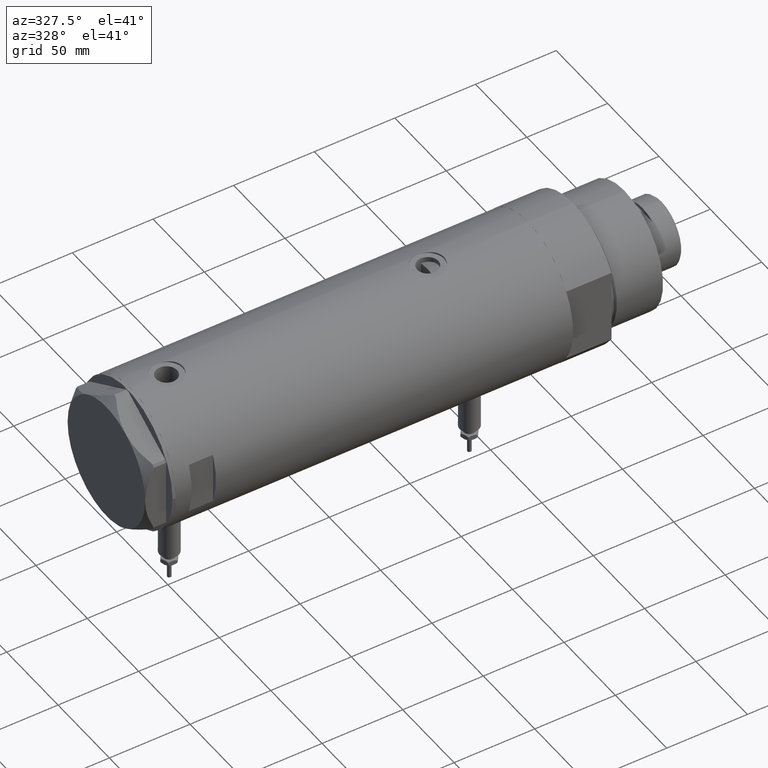
[diagram: clean part render]
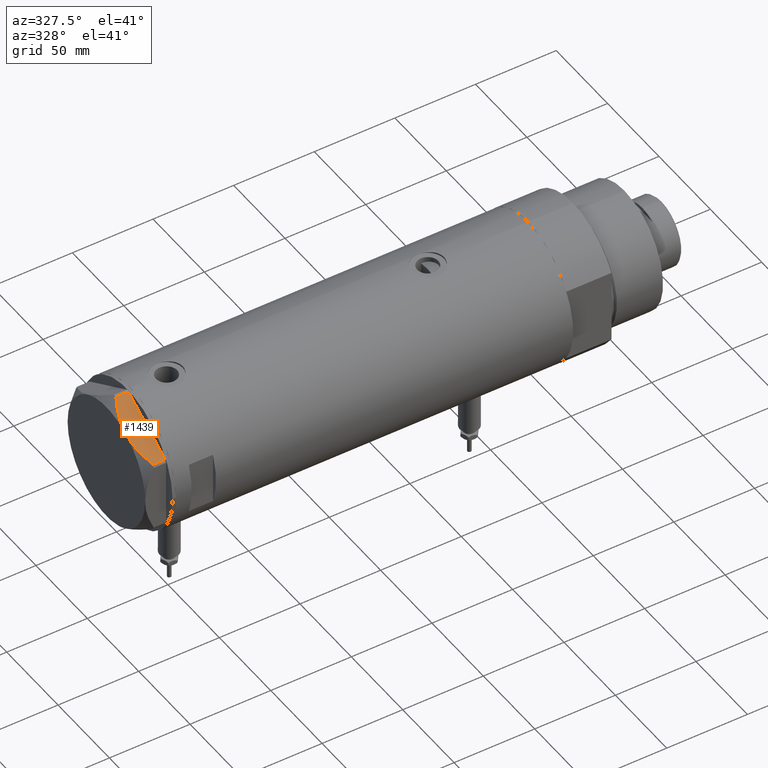
[diagram: same view with one face highlighted and labeled with its STEP entity id]
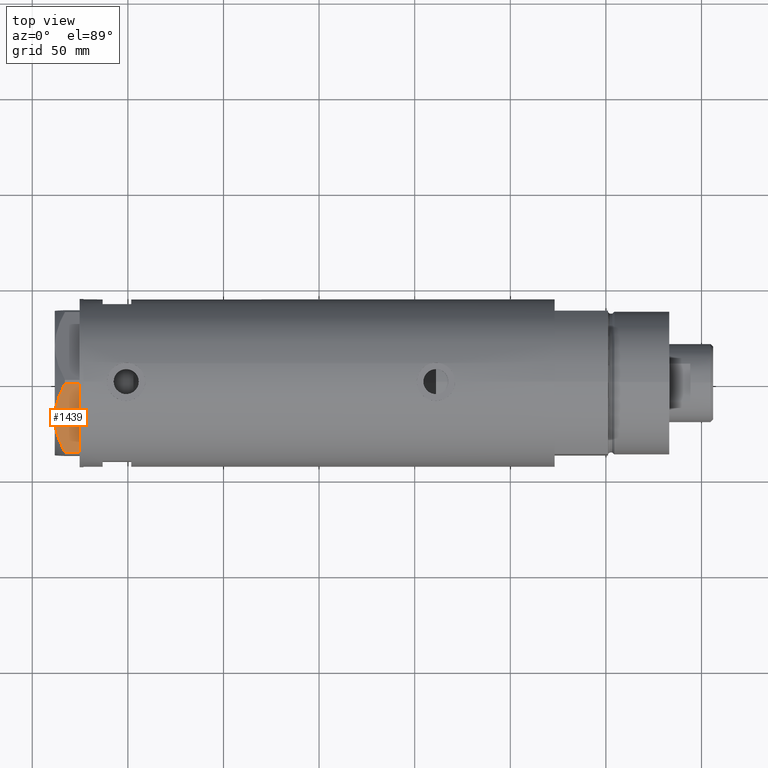
[diagram: same view with one face highlighted and labeled with its STEP entity id]
A machine part, auxiliary view. The second image highlights one B-rep face of the part: STEP entity #1439.
A second angle (top view) of the same face is appended — the face is thin or edge-on in the first view.
In plain terms, the highlighted planar face has unit normal (-0, 0.5, -0.866).
Its self-contained STEP definition (entity closure, byte-faithful):
#49 = CARTESIAN_POINT ( 'NONE',  ( -18.87499999999999645, -32.69245899286255508, 13.00000000000000000 ) ) ;
#132 = DIRECTION ( 'NONE',  ( 0.000000000000000000, 0.000000000000000000, 1.000000000000000000 ) ) ;
#302 = VERTEX_POINT ( 'NONE', #5635 ) ;
#416 = CARTESIAN_POINT ( 'NONE',  ( -33.96695484073207183, -23.97911480296823683, 9.269459228581803600 ) ) ;
#426 = CARTESIAN_POINT ( 'NONE',  ( -12.72654504259227259, -36.24227111762220943, 12.37795492145981235 ) ) ;
#535 = FACE_OUTER_BOUND ( 'NONE', #5971, .T. ) ;
#536 = CARTESIAN_POINT ( 'NONE',  ( -0.9699484522420150912, -43.02994532381475068, 7.709124142618884790 ) ) ;
#566 = CARTESIAN_POINT ( 'NONE',  ( -36.78005154776141694, -22.35497266190838772, 13.00000000000000000 ) ) ;
#567 = CARTESIAN_POINT ( 'NONE',  ( -19.65653997226998584, -32.24123667949004357, 13.00000000000000178 ) ) ;
#747 = ORIENTED_EDGE ( 'NONE', *, *, #2456, .F. ) ;
#793 = CARTESIAN_POINT ( 'NONE',  ( -6.717640657183465258, -39.71151368207270593, 10.48240969891360663 ) ) ;
#1089 = VECTOR ( 'NONE', #132, 1000.000000000000000 ) ;
#1307 = CARTESIAN_POINT ( 'NONE',  ( -5.984301592053449248, -40.13490718873278951, 10.17879673963541087 ) ) ;
#1439 = ADVANCED_FACE ( 'NONE', ( #535 ), #5668, .F. ) ;
#1445 = CARTESIAN_POINT ( 'NONE',  ( -22.79667224021351757, -30.42828046930181074, 12.73960743196720280 ) ) ;
#1543 = CARTESIAN_POINT ( 'NONE',  ( -0.9699484522385920515, -43.02994532381674020, 0.000000000000000000 ) ) ;
#1581 = VECTOR ( 'NONE', #5274, 1000.000000000000000 ) ;
#1812 = CARTESIAN_POINT ( 'NONE',  ( -36.78005154776155905, -22.35497266190830246, 7.709124142616896158 ) ) ;
#2119 = AXIS2_PLACEMENT_3D ( 'NONE', #5605, #4725, #3249 ) ;
#2163 = DIRECTION ( 'NONE',  ( 0.8660254037844385966, -0.4999999999999998890, 0.000000000000000000 ) ) ;
#2193 = VERTEX_POINT ( 'NONE', #4943 ) ;
#2272 = CARTESIAN_POINT ( 'NONE',  ( -11.20965750620535673, -37.11804654508558343, 12.01242981158399914 ) ) ;
#2379 = CARTESIAN_POINT ( 'NONE',  ( -22.01686507582220997, -30.87850234557913609, 12.83692902789789869 ) ) ;
#2395 = CARTESIAN_POINT ( 'NONE',  ( -0.9699484522385850571, -43.02994532381674020, 13.00000000000000000 ) ) ;
#2406 = ORIENTED_EDGE ( 'NONE', *, *, #5268, .T. ) ;
#2456 = EDGE_CURVE ( 'NONE', #2826, #302, #3545, .T. ) ;
#2769 = CARTESIAN_POINT ( 'NONE',  ( -26.62598697109946855, -28.21742457861298803, 11.98878493998158312 ) ) ;
#2826 = VERTEX_POINT ( 'NONE', #4017 ) ;
#2974 = LINE ( 'NONE', #4408, #3880 ) ;
#3032 = ORIENTED_EDGE ( 'NONE', *, *, #3377, .T. ) ;
#3249 = DIRECTION ( 'NONE',  ( -0.8660254037844387076, 0.4999999999999998890, 0.000000000000000000 ) ) ;
#3377 = EDGE_CURVE ( 'NONE', #2193, #5257, #2974, .T. ) ;
#3378 = ORIENTED_EDGE ( 'NONE', *, *, #4447, .T. ) ;
#3382 = LINE ( 'NONE', #566, #1581 ) ;
#3473 = EDGE_CURVE ( 'NONE', #302, #5248, #4751, .T. ) ;
#3476 = ORIENTED_EDGE ( 'NONE', *, *, #3473, .F. ) ;
#3545 = B_SPLINE_CURVE_WITH_KNOTS ( 'NONE', 3,
 ( #1812, #416, #5057, #2769, #4664, #1445, #2379, #3778, #567, #49 ),
 .UNSPECIFIED., .F., .F.,
 ( 4, 2, 2, 2, 4 ),
 ( 0.001231023567492484571, 0.01191187151549577550, 0.01725229548949741565, 0.01992250747649823572, 0.02259271946349905580 ),
 .UNSPECIFIED. ) ;
#3663 = CARTESIAN_POINT ( 'NONE',  ( -17.32290914057169928, -33.58855906836025440, 12.99999999999999822 ) ) ;
#3778 = CARTESIAN_POINT ( 'NONE',  ( -20.44120046918716582, -31.78821273037243245, 12.96759879420491579 ) ) ;
#3880 = VECTOR ( 'NONE', #2163, 1000.000000000000227 ) ;
#4017 = CARTESIAN_POINT ( 'NONE',  ( -36.78005154776155905, -22.35497266190830246, 7.709124142616896158 ) ) ;
#4028 = CARTESIAN_POINT ( 'NONE',  ( -2.376799045726867732, -42.21769975495670479, 8.489459328479822986 ) ) ;
#4058 = CARTESIAN_POINT ( 'NONE',  ( -8.199247025946510448, -38.85610784623428060, 11.04644118613120085 ) ) ;
#4408 = CARTESIAN_POINT ( 'NONE',  ( -37.74999999999999289, -21.79497266190838189, 0.000000000000000000 ) ) ;
#4447 = EDGE_CURVE ( 'NONE', #5257, #5248, #5264, .T. ) ;
#4501 = CARTESIAN_POINT ( 'NONE',  ( -0.9699484522420150912, -43.02994532381475068, 7.709124142618884790 ) ) ;
#4553 = CARTESIAN_POINT ( 'NONE',  ( -3.804046002727119014, -41.39367834013252434, 9.210778219601836625 ) ) ;
#4583 = CARTESIAN_POINT ( 'NONE',  ( -18.87499999999999645, -32.69245899286255508, 13.00000000000000000 ) ) ;
#4664 = CARTESIAN_POINT ( 'NONE',  ( -25.11263918036253884, -29.09115633297249204, 12.35956205105863326 ) ) ;
#4725 = DIRECTION ( 'NONE',  ( 0.4999999999999998890, 0.8660254037844387076, -0.000000000000000000 ) ) ;
#4751 = B_SPLINE_CURVE_WITH_KNOTS ( 'NONE', 3,
 ( #4583, #3663, #5981, #426, #2272, #5494, #4058, #793, #1307, #4553, #4028, #4501 ),
 .UNSPECIFIED., .F., .F.,
 ( 4, 2, 2, 2, 2, 4 ),
 ( 0.02259271946349905580, 0.02789559809390664002, 0.03319847672431422425, 0.03584991603951802330, 0.03850135535472180848, 0.04380423398512939964 ),
 .UNSPECIFIED. ) ;
#4943 = CARTESIAN_POINT ( 'NONE',  ( -36.78005154776141694, -22.35497266190838772, 0.000000000000000000 ) ) ;
#5057 = CARTESIAN_POINT ( 'NONE',  ( -31.09047021924039811, -25.63985397350626272, 10.58681170757598977 ) ) ;
#5248 = VERTEX_POINT ( 'NONE', #536 ) ;
#5257 = VERTEX_POINT ( 'NONE', #1543 ) ;
#5264 = LINE ( 'NONE', #2395, #1089 ) ;
#5268 = EDGE_CURVE ( 'NONE', #2826, #2193, #3382, .T. ) ;
#5274 = DIRECTION ( 'NONE',  ( -0.000000000000000000, 0.000000000000000000, -1.000000000000000000 ) ) ;
#5494 = CARTESIAN_POINT ( 'NONE',  ( -8.949419886525276979, -38.42299534324038746, 11.30742055474529195 ) ) ;
#5605 = CARTESIAN_POINT ( 'NONE',  ( -37.74999999999999289, -21.79497266190838189, 13.00000000000000000 ) ) ;
#5635 = CARTESIAN_POINT ( 'NONE',  ( -18.87499999999999645, -32.69245899286255508, 13.00000000000000000 ) ) ;
#5668 = PLANE ( 'NONE',  #2119 ) ;
#5971 = EDGE_LOOP ( 'NONE', ( #747, #2406, #3032, #3378, #3476 ) ) ;
#5981 = CARTESIAN_POINT ( 'NONE',  ( -15.78316139395997908, -34.47753284435064813, 12.87183830165164800 ) ) ;